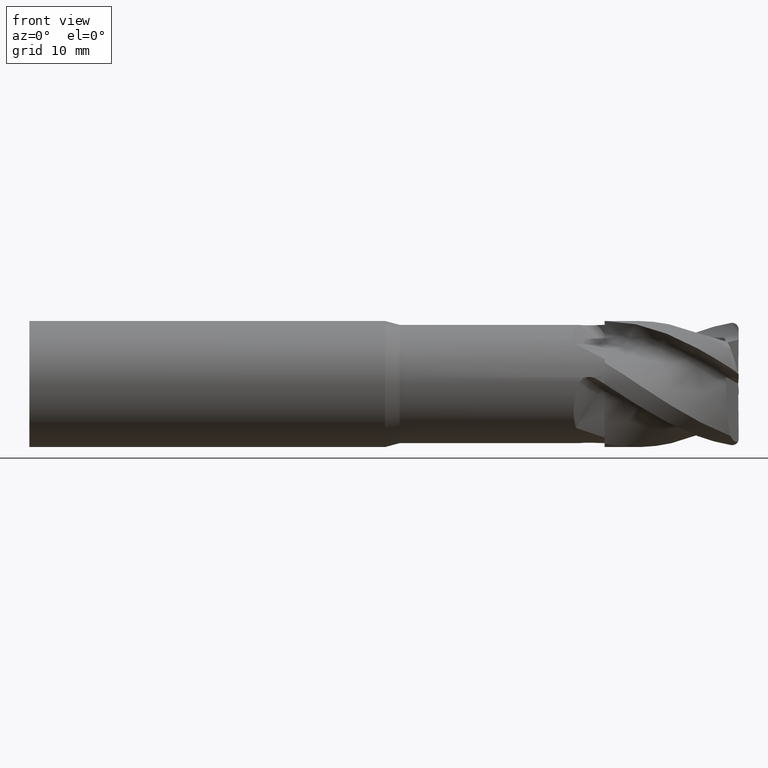
[diagram: clean part render]
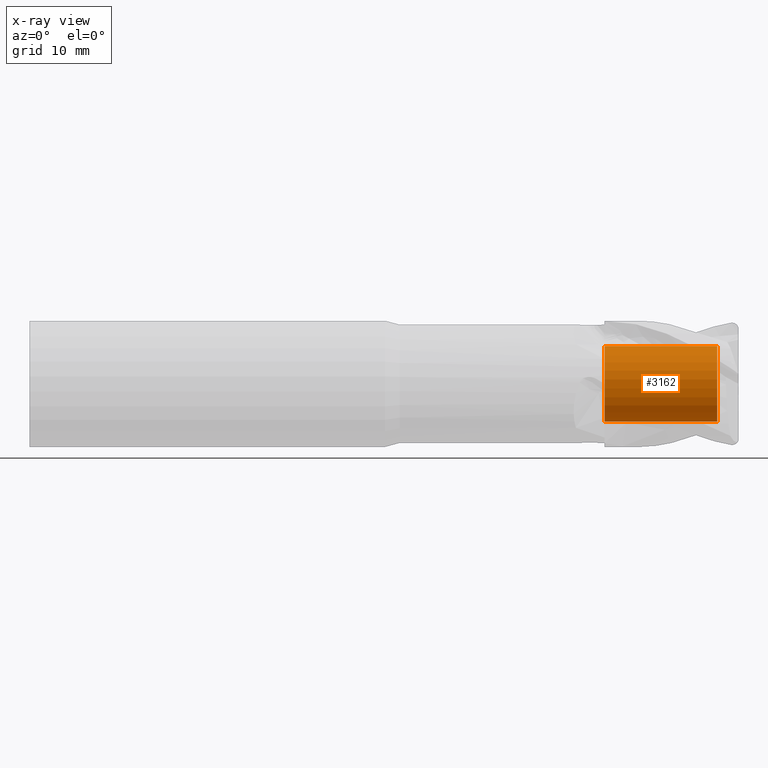
[diagram: x-ray — body ghosted, one internal face saturated and labeled with its STEP entity id]
A machine part, front view, then the same camera in x-ray: the body is ghosted and one INTERNAL B-rep face — a face not visible from any outside direction — is saturated and labeled: STEP entity #3162.
In plain terms, the highlighted cylindrical surface (partial cylindrical patch) has radius 4.8 mm, axis along (-1, -0, -0).
Its self-contained STEP definition (entity closure, byte-faithful):
#99 = FACE_OUTER_BOUND ( 'NONE', #5285, .T. ) ;
#145 = CYLINDRICAL_SURFACE ( 'NONE', #1929, 4.800000000000013100 ) ;
#335 = DIRECTION ( 'NONE',  ( 0.0000000000000000000, 0.0000000000000000000, 1.000000000000000000 ) ) ;
#415 = CARTESIAN_POINT ( 'NONE',  ( -39.76065438357068200, 0.0000000000000000000, 4.800000000000013100 ) ) ;
#450 = DIRECTION ( 'NONE',  ( -1.000000000000000000, -0.0000000000000000000, -0.0000000000000000000 ) ) ;
#451 = CARTESIAN_POINT ( 'NONE',  ( 39.28080089086033400, 0.0000000000000000000, 0.0000000000000000000 ) ) ;
#464 = DIRECTION ( 'NONE',  ( -1.000000000000000000, -0.0000000000000000000, -0.0000000000000000000 ) ) ;
#538 = ORIENTED_EDGE ( 'NONE', *, *, #1743, .F. ) ;
#556 = ORIENTED_EDGE ( 'NONE', *, *, #1833, .T. ) ;
#668 = DIRECTION ( 'NONE',  ( -1.000000000000000000, -0.0000000000000000000, -0.0000000000000000000 ) ) ;
#669 = CARTESIAN_POINT ( 'NONE',  ( -39.76065438357068200, 5.878304635907312000E-016, -4.800000000000013100 ) ) ;
#682 = VECTOR ( 'NONE', #450, 1000.000000000000000 ) ;
#708 = CIRCLE ( 'NONE', #1814, 4.800000000000013100 ) ;
#715 = LINE ( 'NONE', #415, #682 ) ;
#722 = CIRCLE ( 'NONE', #1759, 4.800000000000013100 ) ;
#746 = VECTOR ( 'NONE', #668, 1000.000000000000000 ) ;
#758 = LINE ( 'NONE', #669, #746 ) ;
#822 = VERTEX_POINT ( 'NONE', #864 ) ;
#825 = VERTEX_POINT ( 'NONE', #862 ) ;
#826 = VERTEX_POINT ( 'NONE', #861 ) ;
#827 = VERTEX_POINT ( 'NONE', #860 ) ;
#860 = CARTESIAN_POINT ( 'NONE',  ( 39.28080089086033400, 5.878304635907312000E-016, -4.800000000000013100 ) ) ;
#861 = CARTESIAN_POINT ( 'NONE',  ( 24.99999999999999300, 5.878304635907312000E-016, -4.800000000000013100 ) ) ;
#862 = CARTESIAN_POINT ( 'NONE',  ( 39.28080089086033400, 0.0000000000000000000, 4.800000000000013100 ) ) ;
#864 = CARTESIAN_POINT ( 'NONE',  ( 24.99999999999999300, 0.0000000000000000000, 4.800000000000013100 ) ) ;
#1527 = DIRECTION ( 'NONE',  ( 0.0000000000000000000, 0.0000000000000000000, 1.000000000000000000 ) ) ;
#1528 = DIRECTION ( 'NONE',  ( -1.000000000000000000, -0.0000000000000000000, -0.0000000000000000000 ) ) ;
#1529 = CARTESIAN_POINT ( 'NONE',  ( -39.76065438357068200, 0.0000000000000000000, 0.0000000000000000000 ) ) ;
#1741 = EDGE_CURVE ( 'NONE', #825, #822, #715, .T. ) ;
#1743 = EDGE_CURVE ( 'NONE', #827, #825, #722, .T. ) ;
#1759 = AXIS2_PLACEMENT_3D ( 'NONE', #451, #464, #335 ) ;
#1812 = EDGE_CURVE ( 'NONE', #826, #822, #708, .T. ) ;
#1814 = AXIS2_PLACEMENT_3D ( 'NONE', #2210, #2203, #2208 ) ;
#1833 = EDGE_CURVE ( 'NONE', #827, #826, #758, .T. ) ;
#1929 = AXIS2_PLACEMENT_3D ( 'NONE', #1529, #1528, #1527 ) ;
#2070 = ORIENTED_EDGE ( 'NONE', *, *, #1741, .F. ) ;
#2088 = ORIENTED_EDGE ( 'NONE', *, *, #1812, .T. ) ;
#2203 = DIRECTION ( 'NONE',  ( -1.000000000000000000, -0.0000000000000000000, -0.0000000000000000000 ) ) ;
#2208 = DIRECTION ( 'NONE',  ( 0.0000000000000000000, 0.0000000000000000000, 1.000000000000000000 ) ) ;
#2210 = CARTESIAN_POINT ( 'NONE',  ( 24.99999999999999300, 0.0000000000000000000, 0.0000000000000000000 ) ) ;
#3162 = ADVANCED_FACE ( 'NONE', ( #99 ), #145, .F. ) ;
#5285 = EDGE_LOOP ( 'NONE', ( #538, #556, #2088, #2070 ) ) ;